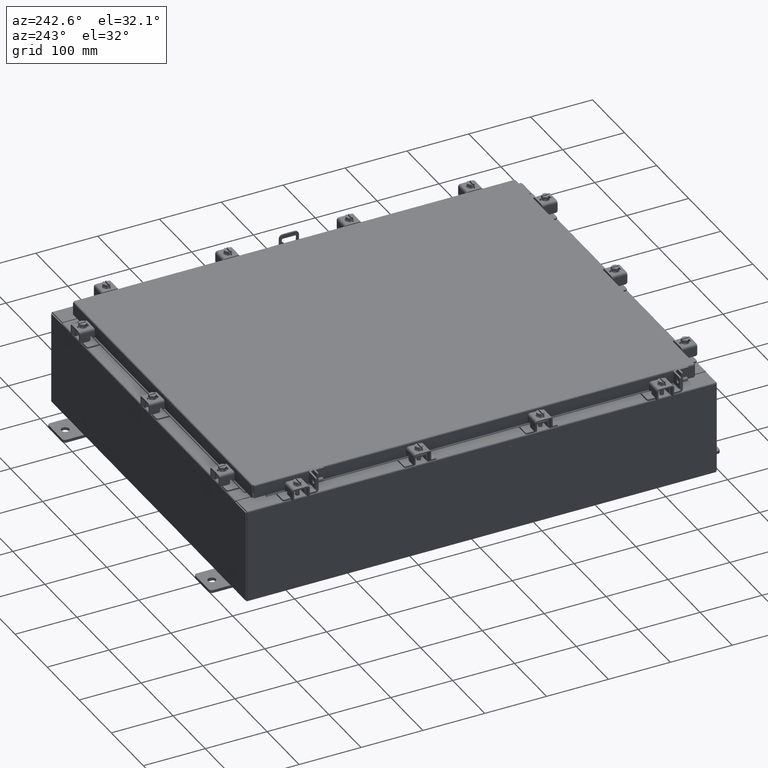
[diagram: clean part render]
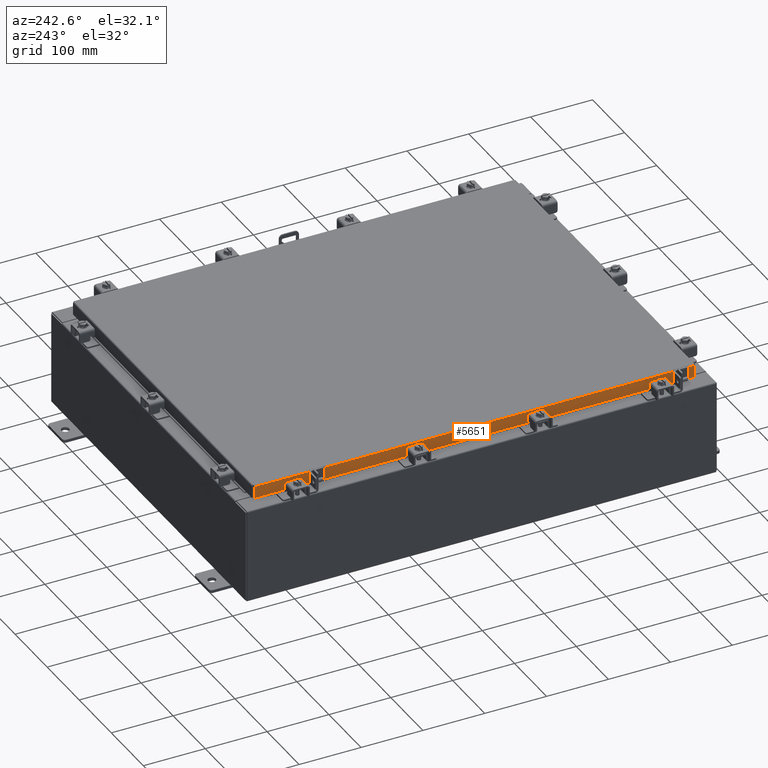
[diagram: same view with one face highlighted and labeled with its STEP entity id]
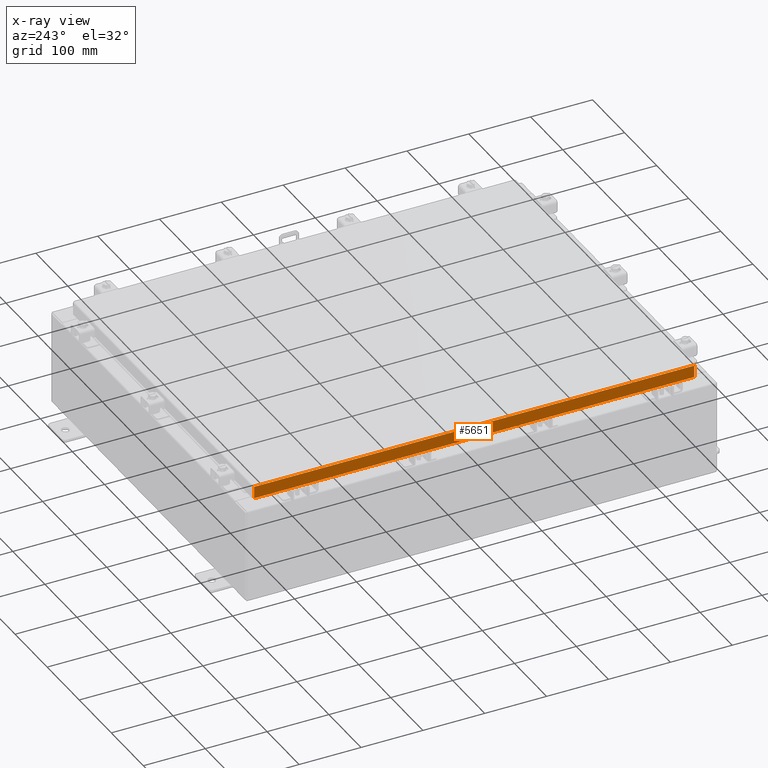
[diagram: x-ray of the same camera — body ghosted, the highlighted face saturated]
A machine part, auxiliary view. The second image highlights one B-rep face of the part: STEP entity #5651.
The next image is the same camera in x-ray: the body ghosted, the highlighted face saturated — about 0% of this face is hidden behind the body in this view.
In plain terms, the highlighted planar face has unit normal (1, 0, -0).
Its self-contained STEP definition (entity closure, byte-faithful):
#406 = EDGE_CURVE ( 'NONE', #6630, #1012, #714, .T. ) ;
#566 = VERTEX_POINT ( 'NONE', #8121 ) ;
#655 = LINE ( 'NONE', #14866, #15456 ) ;
#714 = LINE ( 'NONE', #18496, #1845 ) ;
#1012 = VERTEX_POINT ( 'NONE', #1569 ) ;
#1284 = DIRECTION ( 'NONE',  ( -2.818880942772360100E-015, 0.0000000000000000000, -1.000000000000000000 ) ) ;
#1569 = CARTESIAN_POINT ( 'NONE',  ( -11.07799999999999900, -14.00515786437626400, -0.08770000000000007000 ) ) ;
#1649 = ORIENTED_EDGE ( 'NONE', *, *, #23052, .F. ) ;
#1845 = VECTOR ( 'NONE', #20299, 39.37007874015748100 ) ;
#2054 = VERTEX_POINT ( 'NONE', #11061 ) ;
#2101 = AXIS2_PLACEMENT_3D ( 'NONE', #22679, #11961, #1284 ) ;
#2302 = DIRECTION ( 'NONE',  ( -2.818880942772360100E-015, 6.982962677686265900E-015, -1.000000000000000000 ) ) ;
#2400 = DIRECTION ( 'NONE',  ( -0.0000000000000000000, 1.000000000000000000, -0.0000000000000000000 ) ) ;
#3301 = LINE ( 'NONE', #12202, #12221 ) ;
#4012 = CARTESIAN_POINT ( 'NONE',  ( -11.07799999999999900, -14.00515786437626500, -0.07469999999999978000 ) ) ;
#4796 = PLANE ( 'NONE',  #2101 ) ;
#4823 = CARTESIAN_POINT ( 'NONE',  ( -11.07799999999999900, 14.00515786437626900, 1.292858714020875700E-013 ) ) ;
#5029 = EDGE_CURVE ( 'NONE', #14281, #2054, #655, .T. ) ;
#5651 = ADVANCED_FACE ( 'NONE', ( #15025 ), #4796, .F. ) ;
#5953 = ORIENTED_EDGE ( 'NONE', *, *, #406, .F. ) ;
#6012 = ORIENTED_EDGE ( 'NONE', *, *, #6675, .F. ) ;
#6106 = ORIENTED_EDGE ( 'NONE', *, *, #20903, .T. ) ;
#6612 = LINE ( 'NONE', #4012, #10791 ) ;
#6630 = VERTEX_POINT ( 'NONE', #15711 ) ;
#6675 = EDGE_CURVE ( 'NONE', #2054, #566, #3301, .T. ) ;
#6878 = LINE ( 'NONE', #4823, #16363 ) ;
#6913 = DIRECTION ( 'NONE',  ( -0.0000000000000000000, 1.000000000000000000, 1.211441035930299800E-016 ) ) ;
#8121 = CARTESIAN_POINT ( 'NONE',  ( -11.07800000000000300, 14.00515786437627400, -0.8499999999999963100 ) ) ;
#10377 = VECTOR ( 'NONE', #15090, 39.37007874015748100 ) ;
#10791 = VECTOR ( 'NONE', #2302, 39.37007874015748100 ) ;
#11061 = CARTESIAN_POINT ( 'NONE',  ( -11.07799999999999600, 13.25515786437627400, -0.8500000000000012000 ) ) ;
#11082 = ORIENTED_EDGE ( 'NONE', *, *, #17741, .F. ) ;
#11961 = DIRECTION ( 'NONE',  ( 1.000000000000000000, 3.414908049476327800E-031, -2.818880942772360100E-015 ) ) ;
#12202 = CARTESIAN_POINT ( 'NONE',  ( -11.07800000000000300, -14.09399999999999600, -0.8499999999999996400 ) ) ;
#12221 = VECTOR ( 'NONE', #6913, 39.37007874015748100 ) ;
#13284 = CARTESIAN_POINT ( 'NONE',  ( -11.07800000000000300, -14.09399999999999600, -0.8499999999999996400 ) ) ;
#14281 = VERTEX_POINT ( 'NONE', #16343 ) ;
#14866 = CARTESIAN_POINT ( 'NONE',  ( -11.07799999999999600, -13.25515786437626200, -0.8500000000000012000 ) ) ;
#15025 = FACE_OUTER_BOUND ( 'NONE', #19685, .T. ) ;
#15090 = DIRECTION ( 'NONE',  ( -0.0000000000000000000, 1.000000000000000000, 1.211441035930299800E-016 ) ) ;
#15368 = ORIENTED_EDGE ( 'NONE', *, *, #5029, .F. ) ;
#15456 = VECTOR ( 'NONE', #2400, 39.37007874015748100 ) ;
#15515 = DIRECTION ( 'NONE',  ( -2.818880942772360100E-015, 6.982962677686265900E-015, -1.000000000000000000 ) ) ;
#15711 = CARTESIAN_POINT ( 'NONE',  ( -11.07799999999999900, 14.00515786437626900, -0.08770000000000007000 ) ) ;
#16343 = CARTESIAN_POINT ( 'NONE',  ( -11.07799999999999600, -13.25515786437625600, -0.8500000000000012000 ) ) ;
#16363 = VECTOR ( 'NONE', #15515, 39.37007874015748100 ) ;
#17741 = EDGE_CURVE ( 'NONE', #1012, #19387, #6612, .T. ) ;
#18496 = CARTESIAN_POINT ( 'NONE',  ( -11.07799999999999900, -14.09399999999999600, -0.08770000000000007000 ) ) ;
#18932 = CARTESIAN_POINT ( 'NONE',  ( -11.07800000000000300, -14.00515786437626200, -0.8499999999999996400 ) ) ;
#19387 = VERTEX_POINT ( 'NONE', #18932 ) ;
#19685 = EDGE_LOOP ( 'NONE', ( #5953, #6106, #6012, #15368, #1649, #11082 ) ) ;
#20299 = DIRECTION ( 'NONE',  ( 3.414908049476327800E-031, -1.000000000000000000, -9.308245715024052500E-046 ) ) ;
#20903 = EDGE_CURVE ( 'NONE', #6630, #566, #6878, .T. ) ;
#21029 = LINE ( 'NONE', #13284, #10377 ) ;
#22679 = CARTESIAN_POINT ( 'NONE',  ( -11.07799999999999900, -3.783035137209876100E-030, 3.148837674004379000E-014 ) ) ;
#23052 = EDGE_CURVE ( 'NONE', #19387, #14281, #21029, .T. ) ;